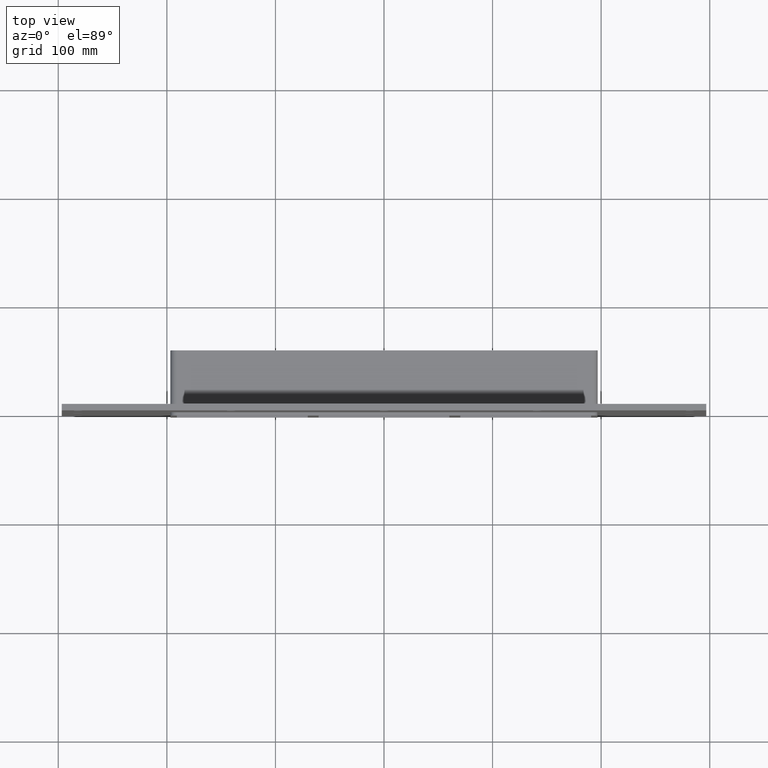
[diagram: clean part render]
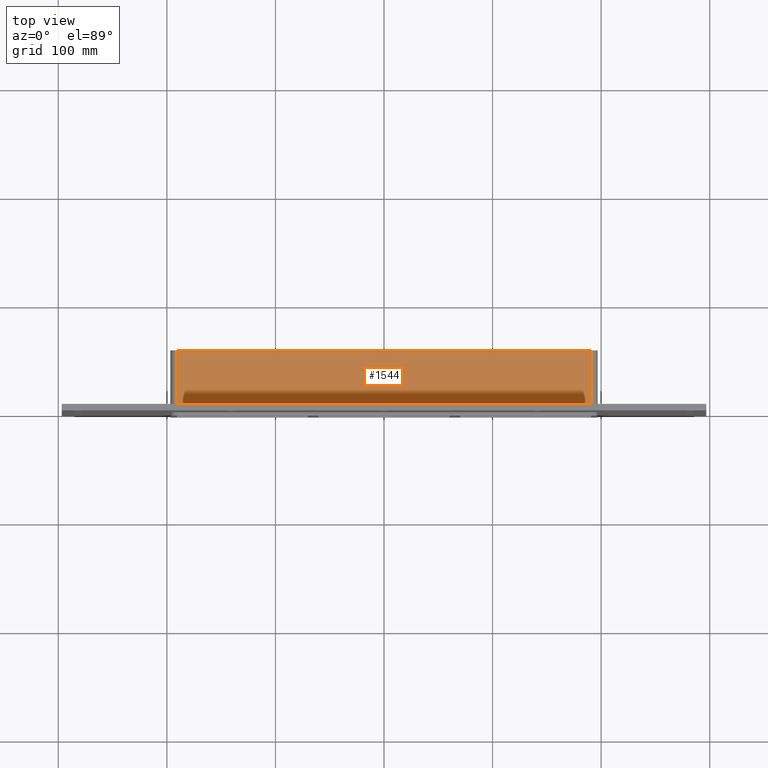
[diagram: same view with one face highlighted and labeled with its STEP entity id]
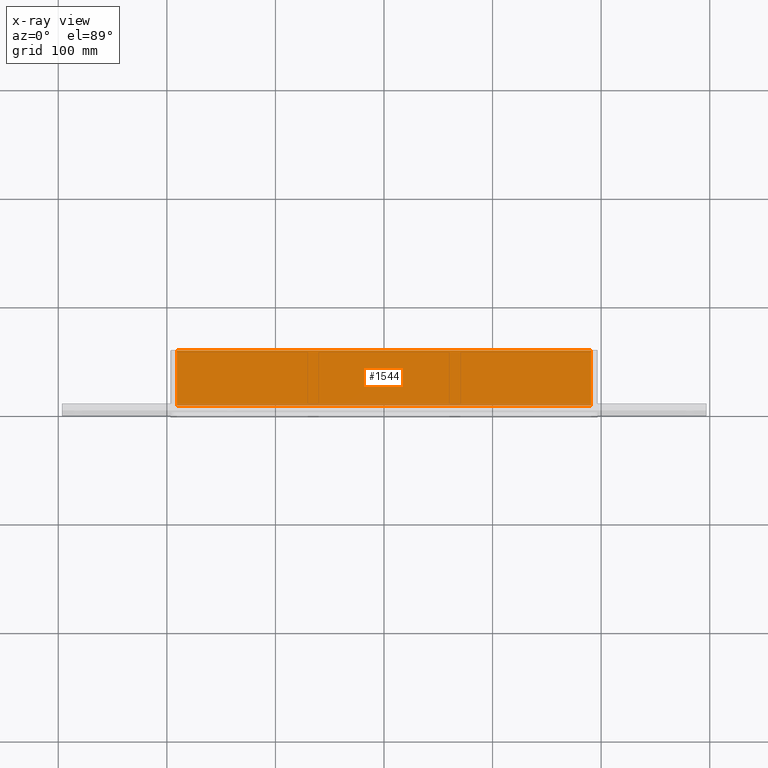
[diagram: x-ray of the same camera — body ghosted, the highlighted face saturated]
A machine part, top view. The second image highlights one B-rep face of the part: STEP entity #1544.
The next image is the same camera in x-ray: the body ghosted, the highlighted face saturated — about 4% of this face is hidden behind the body in this view.
In plain terms, the highlighted planar face has unit normal (0, 0, 1).
Its self-contained STEP definition (entity closure, byte-faithful):
#843=CARTESIAN_POINT('',(190.75000000000003,6.000000000000001,56.5));
#844=VERTEX_POINT('',#843);
#852=CARTESIAN_POINT('',(-190.75000000000003,6.000000000000001,56.5));
#853=VERTEX_POINT('',#852);
#854=CARTESIAN_POINT('',(-190.75000000000003,6.000000000000001,56.5));
#855=DIRECTION('',(1.0,0.0,0.0));
#856=VECTOR('',#855,381.5);
#857=LINE('',#854,#856);
#858=EDGE_CURVE('',#853,#844,#857,.T.);
#1160=CARTESIAN_POINT('',(190.75000000000003,57.0,56.5));
#1161=VERTEX_POINT('',#1160);
#1169=CARTESIAN_POINT('',(190.75000000000003,57.0,56.5));
#1170=DIRECTION('',(0.0,-1.0,0.0));
#1171=VECTOR('',#1170,51.0);
#1172=LINE('',#1169,#1171);
#1173=EDGE_CURVE('',#1161,#844,#1172,.T.);
#1509=CARTESIAN_POINT('',(-190.75000000000003,57.0,56.5));
#1510=VERTEX_POINT('',#1509);
#1511=CARTESIAN_POINT('',(-190.75000000000003,6.000000000000001,56.5));
#1512=DIRECTION('',(0.0,1.0,0.0));
#1513=VECTOR('',#1512,51.0);
#1514=LINE('',#1511,#1513);
#1515=EDGE_CURVE('',#853,#1510,#1514,.T.);
#1528=CARTESIAN_POINT('',(-196.75000000000006,0.0,56.5));
#1529=DIRECTION('',(0.0,0.0,1.0));
#1530=DIRECTION('',(1.0,0.0,0.0));
#1531=AXIS2_PLACEMENT_3D('',#1528,#1529,#1530);
#1532=PLANE('',#1531);
#1533=ORIENTED_EDGE('',*,*,#858,.T.);
#1534=ORIENTED_EDGE('',*,*,#1173,.F.);
#1535=CARTESIAN_POINT('',(-190.75000000000006,57.0,56.5));
#1536=DIRECTION('',(1.0,0.0,0.0));
#1537=VECTOR('',#1536,381.50000000000006);
#1538=LINE('',#1535,#1537);
#1539=EDGE_CURVE('',#1510,#1161,#1538,.T.);
#1540=ORIENTED_EDGE('',*,*,#1539,.F.);
#1541=ORIENTED_EDGE('',*,*,#1515,.F.);
#1542=EDGE_LOOP('',(#1533,#1534,#1540,#1541));
#1543=FACE_OUTER_BOUND('',#1542,.T.);
#1544=ADVANCED_FACE('',(#1543),#1532,.T.);